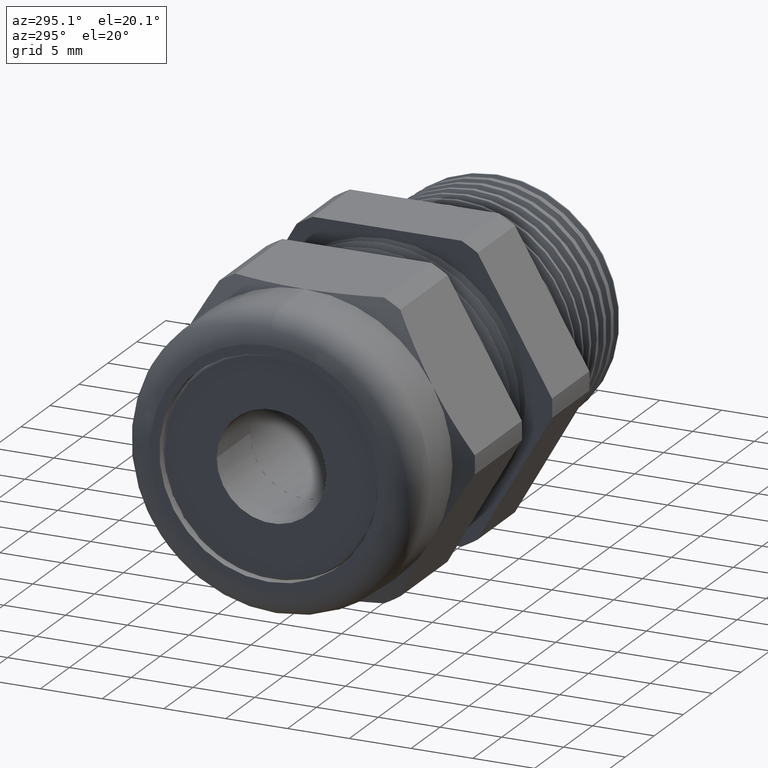
[diagram: clean part render]
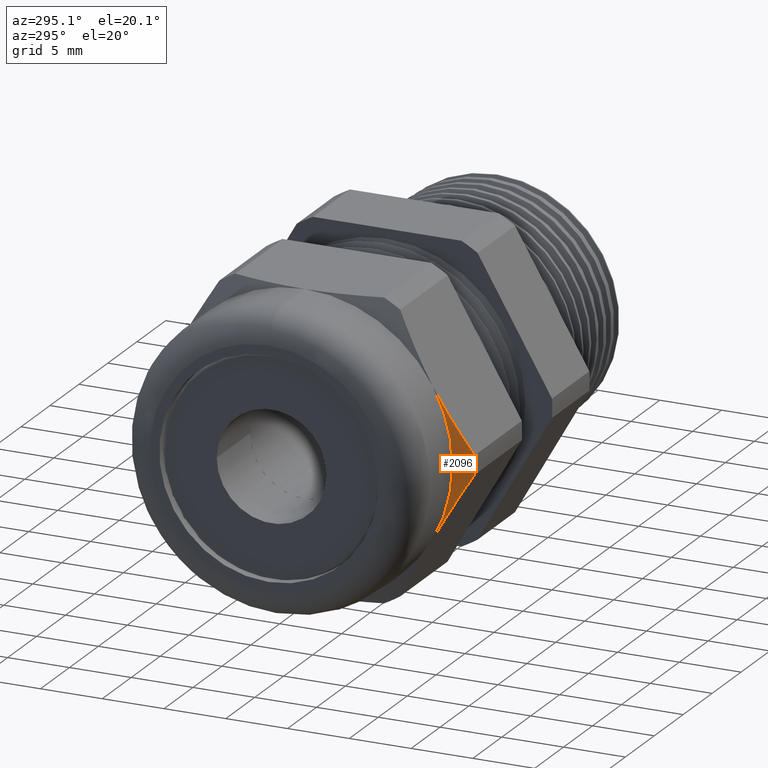
[diagram: same view with one face highlighted and labeled with its STEP entity id]
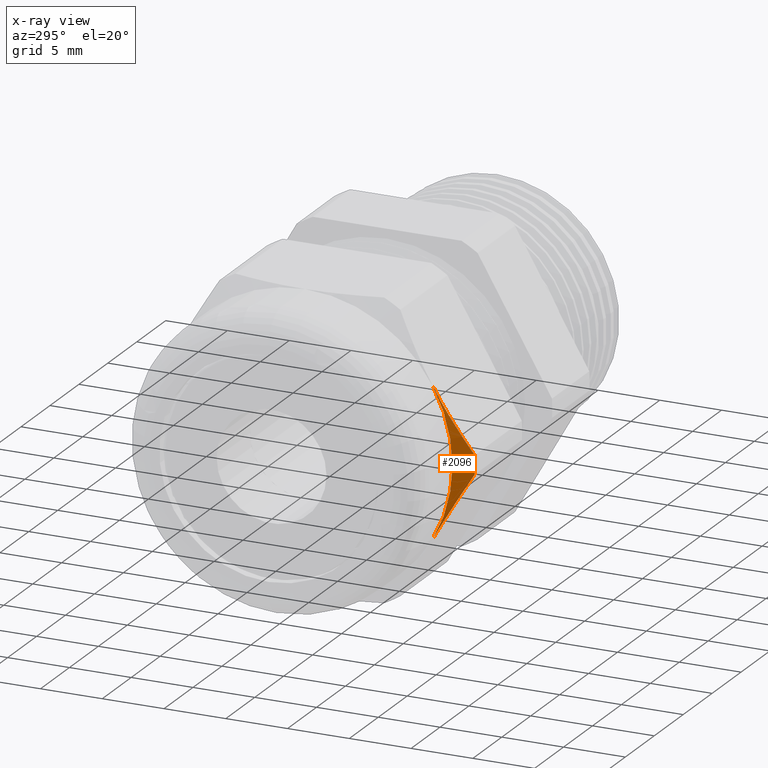
[diagram: x-ray of the same camera — body ghosted, the highlighted face saturated]
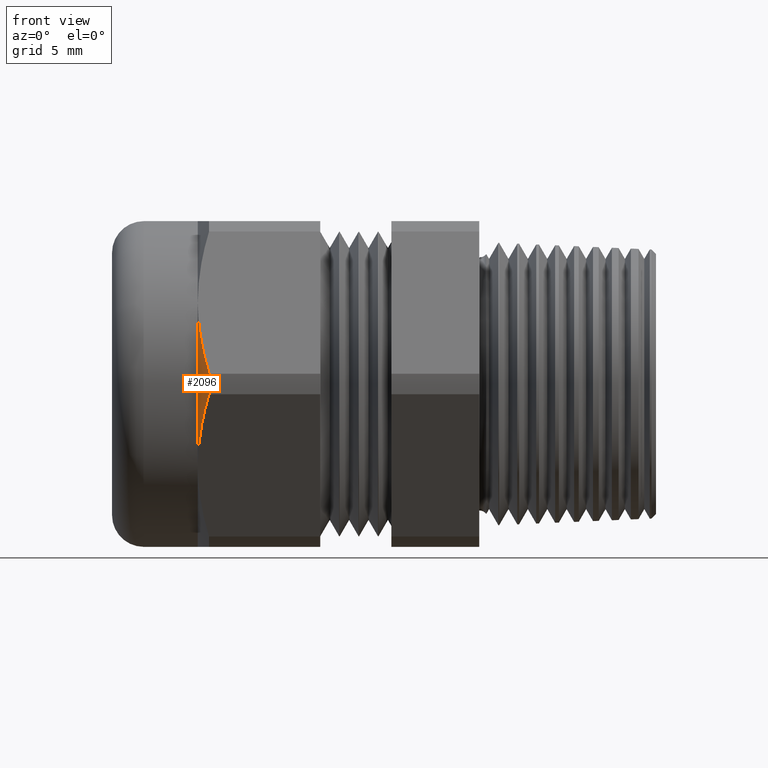
[diagram: same view with one face highlighted and labeled with its STEP entity id]
A machine part, auxiliary view. The second image highlights one B-rep face of the part: STEP entity #2096.
The next image is the same camera in x-ray: the body ghosted, the highlighted face saturated — about 0% of this face is hidden behind the body in this view.
A second angle (front view) of the same face is appended — the face is thin or edge-on in the first view.
In plain terms, the highlighted conical surface has half-angle 60 deg.
Its self-contained STEP definition (entity closure, byte-faithful):
#490 = CARTESIAN_POINT ( 'NONE',  ( -0.7799374448177052200, -0.5255614297801198800, 0.02970090112228935400 ) ) ;
#491 = CARTESIAN_POINT ( 'NONE',  ( -0.7900271810860453000, -0.5061583836853466000, 0.06330796278003783500 ) ) ;
#492 = CARTESIAN_POINT ( 'NONE',  ( -0.7982229591427910700, -0.4866002124151253000, 0.09718370912319480900 ) ) ;
#493 = CARTESIAN_POINT ( 'NONE',  ( -0.8066667942091405600, -0.4569476339447771100, 0.1485434816092610400 ) ) ;
#494 = CARTESIAN_POINT ( 'NONE',  ( -0.8088394445155459000, -0.4470108610952940300, 0.1657544770478364400 ) ) ;
#495 = CARTESIAN_POINT ( 'NONE',  ( -0.8117608953203717700, -0.4270206945807670200, 0.2003784611027595000 ) ) ;
#496 = CARTESIAN_POINT ( 'NONE',  ( -0.8124999999999997800, -0.4169912288112727600, 0.2177500053882964200 ) ) ;
#497 = CARTESIAN_POINT ( 'NONE',  ( -0.8125000000000000000, -0.4070319397786859000, 0.2349999999999999900 ) ) ;
#500 = B_SPLINE_CURVE_WITH_KNOTS ( 'NONE', 3,
 ( #497, #496, #495, #494, #493, #492, #491, #490 ),
 .UNSPECIFIED., .F., .F.,
 ( 4, 2, 2, 4 ),
 ( 0.006075914357643906600, 0.007584561484949381100, 0.009093208612254856400, 0.01211050286686580700 ),
 .UNSPECIFIED. ) ;
#546 = CARTESIAN_POINT ( 'NONE',  ( -0.8125000000000000000, -0.4070319397786859000, 0.2349999999999999900 ) ) ;
#625 = CARTESIAN_POINT ( 'NONE',  ( -0.7799374448177052200, -0.5255614297801198800, -0.02970090112228920800 ) ) ;
#626 = B_SPLINE_CURVE_WITH_KNOTS ( 'NONE', 3,
 ( #625, #683, #682, #681, #680, #679 ),
 .UNSPECIFIED., .F., .F.,
 ( 4, 2, 4 ),
 ( 2.361309699380287200E-007, 0.003038075244306926600, 0.006075914357643915300 ),
 .UNSPECIFIED. ) ;
#627 = CARTESIAN_POINT ( 'NONE',  ( -0.8125000000000000000, -0.4070319397786858500, -0.2349999999999998800 ) ) ;
#679 = CARTESIAN_POINT ( 'NONE',  ( -0.8125000000000000000, -0.4070319397786858500, -0.2349999999999998800 ) ) ;
#680 = CARTESIAN_POINT ( 'NONE',  ( -0.8125000000000000000, -0.4270861441162215300, -0.2002650991820201500 ) ) ;
#681 = CARTESIAN_POINT ( 'NONE',  ( -0.8094967120180421900, -0.4469747253204129400, -0.1658170660459013500 ) ) ;
#682 = CARTESIAN_POINT ( 'NONE',  ( -0.7982716181294381400, -0.4864641007116024500, -0.09741946150920111100 ) ) ;
#683 = CARTESIAN_POINT ( 'NONE',  ( -0.7900750716247750800, -0.5060662878856625500, -0.06346747738425359600 ) ) ;
#977 = CARTESIAN_POINT ( 'NONE',  ( -0.7799374448177052200, -0.5255614297801198800, 0.02970090112228935400 ) ) ;
#1320 = DIRECTION ( 'NONE',  ( -1.000000000000000000, 0.0000000000000000000, 0.0000000000000000000 ) ) ;
#1321 = AXIS2_PLACEMENT_3D ( 'NONE', #1327, #1320, #1383 ) ;
#1322 = CIRCLE ( 'NONE', #1321, 0.5263999999999999800 ) ;
#1327 = CARTESIAN_POINT ( 'NONE',  ( -0.7799374448177052200, 0.0000000000000000000, 0.0000000000000000000 ) ) ;
#1382 = CARTESIAN_POINT ( 'NONE',  ( -0.7799374448177052200, -0.5255614297801198800, -0.02970090112228920800 ) ) ;
#1383 = DIRECTION ( 'NONE',  ( 0.0000000000000000000, 0.0000000000000000000, -1.000000000000000000 ) ) ;
#2066 = ORIENTED_EDGE ( 'NONE', *, *, #2431, .F. ) ;
#2074 = ORIENTED_EDGE ( 'NONE', *, *, #2797, .T. ) ;
#2075 = EDGE_CURVE ( 'NONE', #2430, #2383, #3452, .T. ) ;
#2091 = ORIENTED_EDGE ( 'NONE', *, *, #2075, .F. ) ;
#2092 = EDGE_LOOP ( 'NONE', ( #2091, #2066, #2074, #2115 ) ) ;
#2096 = ADVANCED_FACE ( 'NONE', ( #3429 ), #3428, .T. ) ;
#2115 = ORIENTED_EDGE ( 'NONE', *, *, #2378, .F. ) ;
#2378 = EDGE_CURVE ( 'NONE', #2383, #2613, #500, .T. ) ;
#2383 = VERTEX_POINT ( 'NONE', #546 ) ;
#2430 = VERTEX_POINT ( 'NONE', #627 ) ;
#2431 = EDGE_CURVE ( 'NONE', #2798, #2430, #626, .T. ) ;
#2613 = VERTEX_POINT ( 'NONE', #977 ) ;
#2797 = EDGE_CURVE ( 'NONE', #2798, #2613, #1322, .T. ) ;
#2798 = VERTEX_POINT ( 'NONE', #1382 ) ;
#3424 = DIRECTION ( 'NONE',  ( 0.0000000000000000000, 0.0000000000000000000, 1.000000000000000000 ) ) ;
#3425 = DIRECTION ( 'NONE',  ( 1.000000000000000000, 0.0000000000000000000, 0.0000000000000000000 ) ) ;
#3426 = AXIS2_PLACEMENT_3D ( 'NONE', #3434, #3425, #3424 ) ;
#3428 = CONICAL_SURFACE ( 'NONE', #3426, 0.4699999999999997000, 1.047197551196600100 ) ;
#3429 = FACE_OUTER_BOUND ( 'NONE', #2092, .T. ) ;
#3434 = CARTESIAN_POINT ( 'NONE',  ( -0.8125000000000000000, 0.0000000000000000000, 0.0000000000000000000 ) ) ;
#3448 = DIRECTION ( 'NONE',  ( 0.0000000000000000000, 0.0000000000000000000, 1.000000000000000000 ) ) ;
#3449 = DIRECTION ( 'NONE',  ( -1.000000000000000000, 0.0000000000000000000, 0.0000000000000000000 ) ) ;
#3450 = CARTESIAN_POINT ( 'NONE',  ( -0.8125000000000000000, 0.0000000000000000000, 0.0000000000000000000 ) ) ;
#3451 = AXIS2_PLACEMENT_3D ( 'NONE', #3450, #3449, #3448 ) ;
#3452 = CIRCLE ( 'NONE', #3451, 0.4699999999999997500 ) ;